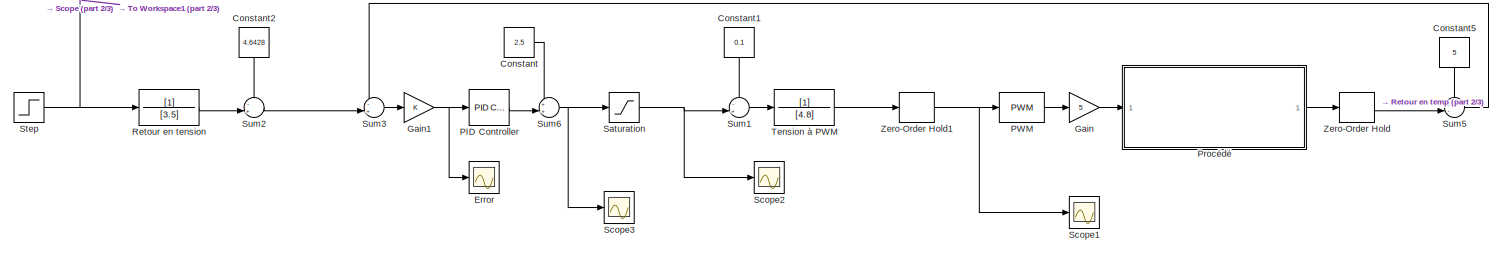
[diagram: root canvas - part 1/3, full width, top band]
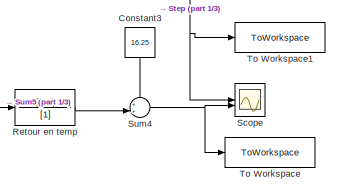
[diagram: root canvas - part 2/3, top right region]
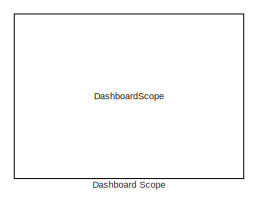
[diagram: root canvas - part 3/3, bottom center region]
MODEL slx_6e692eca8b33
KIND model
CONFIG AbsTol = auto
CONFIG EnableMultiTasking = off
CONFIG FixedStep = auto
CONFIG MaxStep = auto
CONFIG MinStep = auto
CONFIG RelTol = 1e-3
CONFIG SampleTimeConstraint = Unconstrained
CONFIG SolverName = VariableStepAuto
CONFIG StartTime = 0.0
CONFIG StopTime = 2000
BLOCK [Constant] Constant
  Value = 2.5
BLOCK [Constant] Constant1
  NameLocation = left
  Value = 0.1
BLOCK [Constant] Constant2
  NameLocation = left
  Value = 4.6428
BLOCK [Constant] Constant3
  NameLocation = left
  Value = 16.25
BLOCK [Constant] Constant5
  NameLocation = left
  Value = 5
BLOCK [DashboardScope] Dashboard Scope
BLOCK [Scope] Error
  Floating = off
  NumInputPorts = 1
  ScopeSpecificationString = Simulink.scopes.TimeScopeBlockCfg('CurrentConfiguration', extmgr.ConfigurationSet(extmgr.Configuration('Core','General UI',true),extmgr.Configuration('Core','Source UI',true),extmgr.Configuration('Sources','WiredSimulink',true,'DataLoggingVariableName','ScopeData1'),extmgr.Configuration('Visuals','Time Domain',true,'SerializedDisplays',{struct('MinYLimReal','-0.57133','MaxYLimReal','0.57113','YLab...<+1418ch>
BLOCK [Gain] Gain
  Gain = 5
BLOCK [Gain] Gain1
BLOCK [Reference] PID Controller  REF=slpidlib/PID Controller
  LibrarySourceBlock = simulink/Continuous/PID Controller
  SourceBlock = slpidlib/PID Controller
  SourceType = PID 1dof
BLOCK [Reference] PWM  REF=simulink/Discontinuities/PWM
  DisableCoverage = on
  SourceBlock = simulink/Discontinuities/PWM
  SourceType = PWM
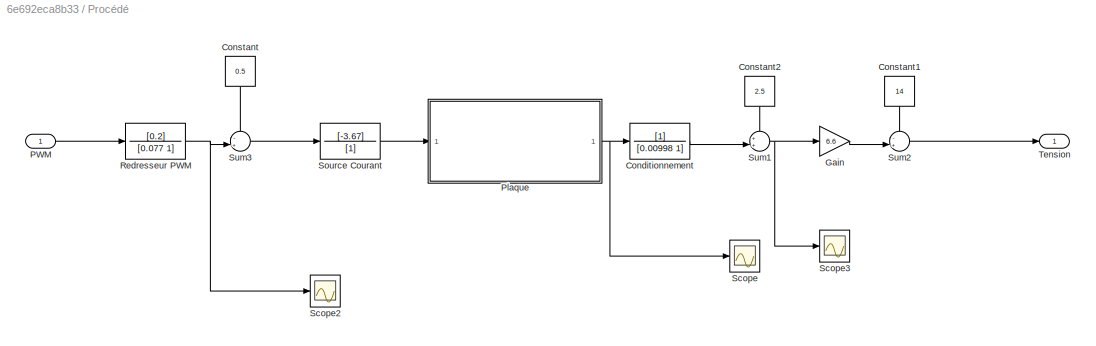
BLOCK [SubSystem] Procédé
BLOCK [TransferFcn] Procédé/Conditionnement
  Denominator = [0.00998 1]
BLOCK [Constant] Procédé/Constant
  NameLocation = left
  Value = 0.5
BLOCK [Constant] Procédé/Constant1
  NameLocation = left
  Value = 14
BLOCK [Constant] Procédé/Constant2
  NameLocation = left
  Value = 2.5
BLOCK [Gain] Procédé/Gain
  Gain = 6.6
BLOCK [Inport] Procédé/PWM
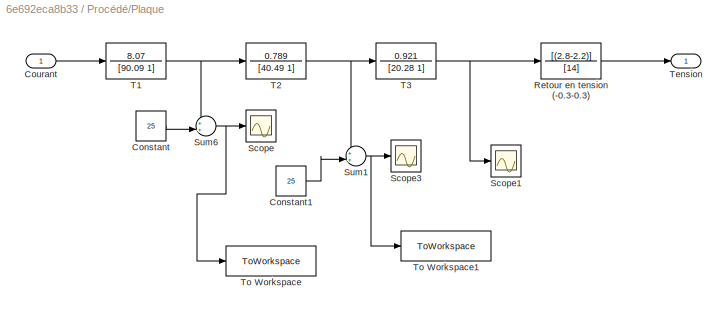
BLOCK [SubSystem] Procédé/Plaque
  ShowPortLabels = SignalName
BLOCK [Constant] Procédé/Plaque/Constant
  Value = 25
BLOCK [Constant] Procédé/Plaque/Constant1
  Value = 25
BLOCK [Inport] Procédé/Plaque/Courant
BLOCK [TransferFcn] Procédé/Plaque/Retour en tension (-0.3-0.3)
  Denominator = [14]
  Numerator = [(2.8-2.2)]
BLOCK [Scope] Procédé/Plaque/Scope
  Floating = off
  NumInputPorts = 1
  ScopeSpecificationString = Simulink.scopes.TimeScopeBlockCfg('CurrentConfiguration', extmgr.ConfigurationSet(extmgr.Configuration('Core','General UI',true),extmgr.Configuration('Core','Source UI',true),extmgr.Configuration('Sources','WiredSimulink',true,'DataLoggingVariableName','ScopeData3'),extmgr.Configuration('Visuals','Time Domain',true,'SerializedDisplays',{struct('MinYLimReal','24.72192','MaxYLimReal','27.50032','YLa...<+1369ch>
BLOCK [Scope] Procédé/Plaque/Scope1
  Floating = off
  NumInputPorts = 1
  ScopeSpecificationString = Simulink.scopes.TimeScopeBlockCfg('CurrentConfiguration', extmgr.ConfigurationSet(extmgr.Configuration('Core','General UI',true),extmgr.Configuration('Core','Source UI',true),extmgr.Configuration('Sources','WiredSimulink',true,'DataLoggingVariableName','ScopeData2'),extmgr.Configuration('Visuals','Time Domain',true,'SerializedDisplays',{struct('MinYLimReal','-0.2452','MaxYLimReal','1.05079','YLabe...<+1359ch>
BLOCK [Scope] Procédé/Plaque/Scope3
  Floating = off
  NumInputPorts = 1
  ScopeSpecificationString = Simulink.scopes.TimeScopeBlockCfg('CurrentConfiguration', extmgr.ConfigurationSet(extmgr.Configuration('Core','General UI',true),extmgr.Configuration('Core','Source UI',true),extmgr.Configuration('Sources','WiredSimulink',true,'DataLoggingVariableName','ScopeData2'),extmgr.Configuration('Visuals','Time Domain',true,'SerializedDisplays',{struct('MinYLimReal','24.78067','MaxYLimReal','26.97226','YLa...<+1424ch>
BLOCK [Sum] Procédé/Plaque/Sum1
  InputSameDT = on
  Inputs = ++|
  OutDataTypeStr = Inherit: Same as first input
  SaturateOnIntegerOverflow = on
BLOCK [Sum] Procédé/Plaque/Sum6
  InputSameDT = on
  Inputs = ++|
  OutDataTypeStr = Inherit: Same as first input
  SaturateOnIntegerOverflow = on
BLOCK [TransferFcn] Procédé/Plaque/T1
  Denominator = [90.09 1]
  Numerator = 8.07
BLOCK [TransferFcn] Procédé/Plaque/T2
  Denominator = [40.49 1]
  Numerator = 0.789
BLOCK [TransferFcn] Procédé/Plaque/T3
  Denominator = [20.28 1]
  Numerator = 0.921
BLOCK [Outport] Procédé/Plaque/Tension
BLOCK [ToWorkspace] Procédé/Plaque/To Workspace
  FixptAsFi = on
  MaxDataPoints = inf
  SampleTime = -1
  SaveFormat = Timeseries
  VariableName = simout2
BLOCK [ToWorkspace] Procédé/Plaque/To Workspace1
  FixptAsFi = on
  MaxDataPoints = inf
  SampleTime = -1
  SaveFormat = Timeseries
  VariableName = simout3
BLOCK [TransferFcn] Procédé/Redresseur PWM
  Denominator = [0.077 1]
  Numerator = [0.2]
BLOCK [Scope] Procédé/Scope
  Floating = off
  NumInputPorts = 1
  ScopeSpecificationString = Simulink.scopes.TimeScopeBlockCfg('CurrentConfiguration', extmgr.ConfigurationSet(extmgr.Configuration('Core','General UI',true),extmgr.Configuration('Core','Source UI',true),extmgr.Configuration('Sources','WiredSimulink',true,'DataLoggingVariableName','ScopeData2'),extmgr.Configuration('Visuals','Time Domain',true,'SerializedDisplays',{struct('MinYLimReal','-0.34093','MaxYLimReal','0.03808','YLab...<+1807ch>
BLOCK [Scope] Procédé/Scope2
  Floating = off
  NumInputPorts = 1
  ScopeSpecificationString = Simulink.scopes.TimeScopeBlockCfg('CurrentConfiguration', extmgr.ConfigurationSet(extmgr.Configuration('Core','General UI',true),extmgr.Configuration('Core','Source UI',true),extmgr.Configuration('Sources','WiredSimulink',true,'DataLoggingVariableName','ScopeData4'),extmgr.Configuration('Visuals','Time Domain',true,'SerializedDisplays',{struct('MinYLimReal','-3.10723','MaxYLimReal','2.5508','YLabe...<+1447ch>
BLOCK [Scope] Procédé/Scope3
  Floating = off
  NumInputPorts = 1
  ScopeSpecificationString = Simulink.scopes.TimeScopeBlockCfg('CurrentConfiguration', extmgr.ConfigurationSet(extmgr.Configuration('Core','General UI',true),extmgr.Configuration('Core','Source UI',true),extmgr.Configuration('Sources','WiredSimulink',true,'DataLoggingVariableName','ScopeData2'),extmgr.Configuration('Visuals','Time Domain',true,'SerializedDisplays',{struct('MinYLimReal','2.32466','MaxYLimReal','2.51968','YLabe...<+1435ch>
BLOCK [TransferFcn] Procédé/Source Courant
  Denominator = [1]
  Numerator = [-3.67]
BLOCK [Sum] Procédé/Sum1
  InputSameDT = on
  Inputs = ++|
  OutDataTypeStr = Inherit: Same as first input
  SaturateOnIntegerOverflow = on
BLOCK [Sum] Procédé/Sum2
  InputSameDT = on
  Inputs = -+|
  OutDataTypeStr = Inherit: Same as first input
  SaturateOnIntegerOverflow = on
BLOCK [Sum] Procédé/Sum3
  InputSameDT = on
  Inputs = -+|
  OutDataTypeStr = Inherit: Same as first input
  SaturateOnIntegerOverflow = on
BLOCK [Outport] Procédé/Tension
BLOCK [TransferFcn] Retour en temp
  Denominator = [1]
  Numerator = [3.5]
BLOCK [TransferFcn] Retour en tension
  Denominator = [3.5]
BLOCK [Saturate] Saturation
  LowerLimit = 0.1
  UpperLimit = 4.9
BLOCK [Scope] Scope
  Floating = off
  NumInputPorts = 2
  ScopeSpecificationString = Simulink.scopes.TimeScopeBlockCfg('CurrentConfiguration', extmgr.ConfigurationSet(extmgr.Configuration('Core','General UI',true),extmgr.Configuration('Core','Source UI',true),extmgr.Configuration('Sources','WiredSimulink',true,'DataLogging',true),extmgr.Configuration('Visuals','Time Domain',true,'SerializedDisplays',{struct('MinYLimReal','22.82499','MaxYLimReal','28.57507','YLabelReal','','MinYLim...<+1429ch>
BLOCK [Scope] Scope1
  Floating = off
  NumInputPorts = 1
  ScopeSpecificationString = Simulink.scopes.TimeScopeBlockCfg('CurrentConfiguration', extmgr.ConfigurationSet(extmgr.Configuration('Core','General UI',true),extmgr.Configuration('Core','Source UI',true),extmgr.Configuration('Sources','WiredSimulink',true,'DataLoggingVariableName','ScopeData1'),extmgr.Configuration('Visuals','Time Domain',true,'SerializedDisplays',{struct('MinYLimReal','-0.02995','MaxYLimReal','0.26953','YLab...<+1448ch>
BLOCK [Scope] Scope2
  Floating = off
  NumInputPorts = 1
  ScopeSpecificationString = Simulink.scopes.TimeScopeBlockCfg('CurrentConfiguration', extmgr.ConfigurationSet(extmgr.Configuration('Core','General UI',true),extmgr.Configuration('Core','Source UI',true),extmgr.Configuration('Sources','WiredSimulink',true,'DataLoggingVariableName','ScopeData1'),extmgr.Configuration('Visuals','Time Domain',true,'SerializedDisplays',{struct('MinYLimReal','2.13981','MaxYLimReal','2.68134','YLabe...<+1431ch>
BLOCK [Scope] Scope3
  Floating = off
  NumInputPorts = 1
  ScopeSpecificationString = Simulink.scopes.TimeScopeBlockCfg('CurrentConfiguration', extmgr.ConfigurationSet(extmgr.Configuration('Core','General UI',true),extmgr.Configuration('Core','Source UI',true),extmgr.Configuration('Sources','WiredSimulink',true,'DataLoggingVariableName','ScopeData1'),extmgr.Configuration('Visuals','Time Domain',true,'SerializedDisplays',{struct('MinYLimReal','2.13981','MaxYLimReal','2.68134','YLabe...<+1425ch>
BLOCK [Step] Step
  After = 25
  Before = 23.4
  SampleTime = 0
  Time = 800
BLOCK [Sum] Sum1
  InputSameDT = on
  Inputs = -+|
  OutDataTypeStr = Inherit: Same as first input
  SaturateOnIntegerOverflow = on
BLOCK [Sum] Sum2
  InputSameDT = on
  Inputs = -+|
  OutDataTypeStr = Inherit: Same as first input
  SaturateOnIntegerOverflow = on
BLOCK [Sum] Sum3
  InputSameDT = on
  Inputs = -+|
  OutDataTypeStr = Inherit: Same as first input
  SaturateOnIntegerOverflow = on
BLOCK [Sum] Sum4
  InputSameDT = on
  Inputs = ++|
  OutDataTypeStr = Inherit: Same as first input
  SaturateOnIntegerOverflow = on
BLOCK [Sum] Sum5
  InputSameDT = on
  Inputs = +-|
  OutDataTypeStr = Inherit: Same as first input
  SaturateOnIntegerOverflow = on
BLOCK [Sum] Sum6
  InputSameDT = on
  Inputs = ++|
  OutDataTypeStr = Inherit: Same as first input
  SaturateOnIntegerOverflow = on
BLOCK [TransferFcn] Tension à PWM
  Denominator = [4.8]
BLOCK [ToWorkspace] To Workspace
  MaxDataPoints = inf
  SampleTime = -1
  SaveFormat = Structure With Time
  VariableName = simout
BLOCK [ToWorkspace] To Workspace1
  FixptAsFi = on
  MaxDataPoints = inf
  SampleTime = -1
  VariableName = simout1
BLOCK [ZeroOrderHold] Zero-Order Hold
BLOCK [ZeroOrderHold] Zero-Order Hold1
LINE Constant1:1 -> Sum1:1
LINE Constant2:1 -> Sum2:1
LINE Constant3:1 -> Sum4:1
LINE Constant5:1 -> Sum5:1
LINE Constant:1 -> Sum6:1
NET Gain1:1 -> Error:1, PID Controller:1
LINE Gain:1 -> Procédé:1
LINE PID Controller:1 -> Sum6:2
LINE PWM:1 -> Gain:1
LINE Procédé/Conditionnement:1 -> Procédé/Sum1:2
LINE Procédé/Constant1:1 -> Procédé/Sum2:1
LINE Procédé/Constant2:1 -> Procédé/Sum1:1
LINE Procédé/Constant:1 -> Procédé/Sum3:1
LINE Procédé/Gain:1 -> Procédé/Sum2:2
LINE Procédé/PWM:1 -> Procédé/Redresseur PWM:1
LINE Procédé/Plaque/Constant1:1 -> Procédé/Plaque/Sum1:2
LINE Procédé/Plaque/Constant:1 -> Procédé/Plaque/Sum6:2
LINE Procédé/Plaque/Courant:1 -> Procédé/Plaque/T1:1
LINE Procédé/Plaque/Retour en tension (-0.3-0.3):1 -> Procédé/Plaque/Tension:1
NET Procédé/Plaque/Sum1:1 -> Procédé/Plaque/Scope3:1, Procédé/Plaque/To Workspace1:1
NET Procédé/Plaque/Sum6:1 -> Procédé/Plaque/Scope:1, Procédé/Plaque/To Workspace:1
NET Procédé/Plaque/T1:1 -> Procédé/Plaque/Sum6:1, Procédé/Plaque/T2:1
NET Procédé/Plaque/T2:1 -> Procédé/Plaque/Sum1:1, Procédé/Plaque/T3:1
NET Procédé/Plaque/T3:1 -> Procédé/Plaque/Retour en tension (-0.3-0.3):1, Procédé/Plaque/Scope1:1
NET Procédé/Plaque:1 -> Procédé/Conditionnement:1, Procédé/Scope:1
NET Procédé/Redresseur PWM:1 -> Procédé/Scope2:1, Procédé/Sum3:2
LINE Procédé/Source Courant:1 -> Procédé/Plaque:1
NET Procédé/Sum1:1 -> Procédé/Gain:1, Procédé/Scope3:1
LINE Procédé/Sum2:1 -> Procédé/Tension:1
LINE Procédé/Sum3:1 -> Procédé/Source Courant:1
LINE Procédé:1 -> Zero-Order Hold:1
LINE Retour en temp:1 -> Sum4:2
LINE Retour en tension:1 -> Sum2:2
NET Saturation:1 -> Scope2:1, Sum1:2
NET Step:1 -> Retour en tension:1, Scope:1, To Workspace1:1
LINE Sum1:1 -> Tension à PWM:1
LINE Sum2:1 -> Sum3:2
LINE Sum3:1 -> Gain1:1
NET Sum4:1 -> Scope:2, To Workspace:1
NET Sum5:1 -> Retour en temp:1, Sum3:1
NET Sum6:1 -> Saturation:1, Scope3:1
LINE Tension à PWM:1 -> Zero-Order Hold1:1
NET Zero-Order Hold1:1 -> PWM:1, Scope1:1
LINE Zero-Order Hold:1 -> Sum5:2
note: NET lines group one-source signal fan-out (src -> all destinations, sorted); 1:1 wires keep LINE
